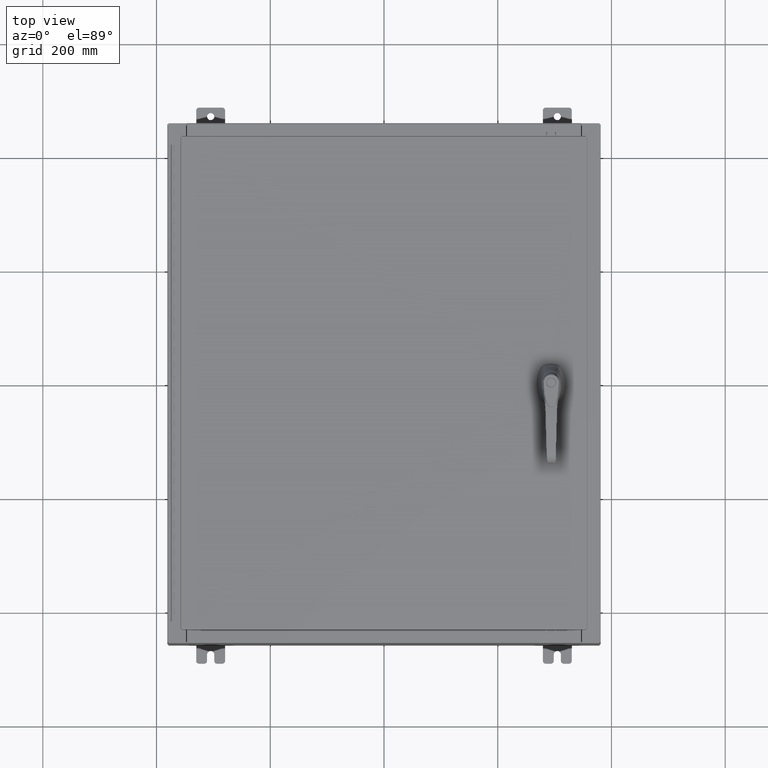
[diagram: clean part render]
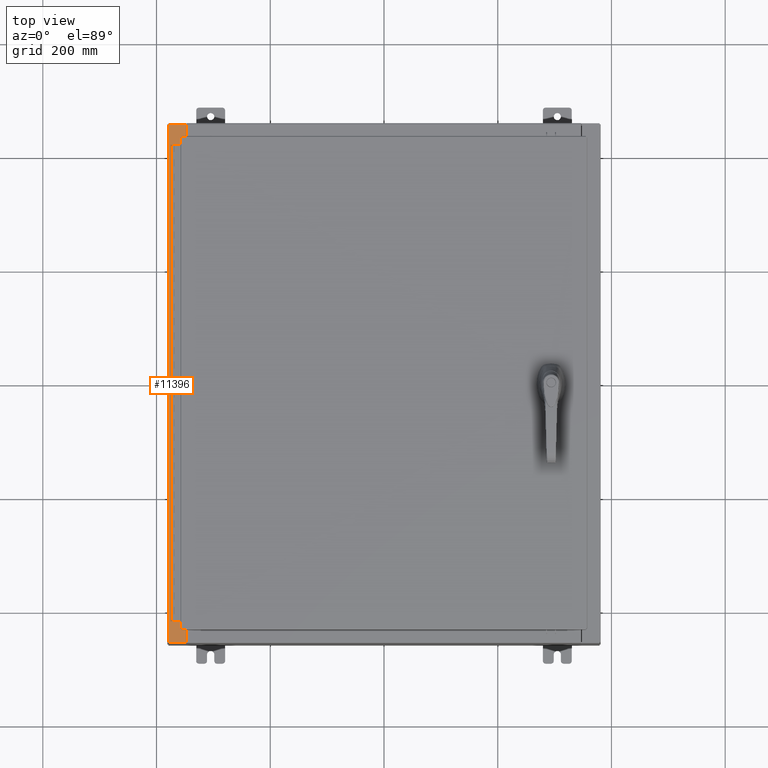
[diagram: same view with one face highlighted and labeled with its STEP entity id]
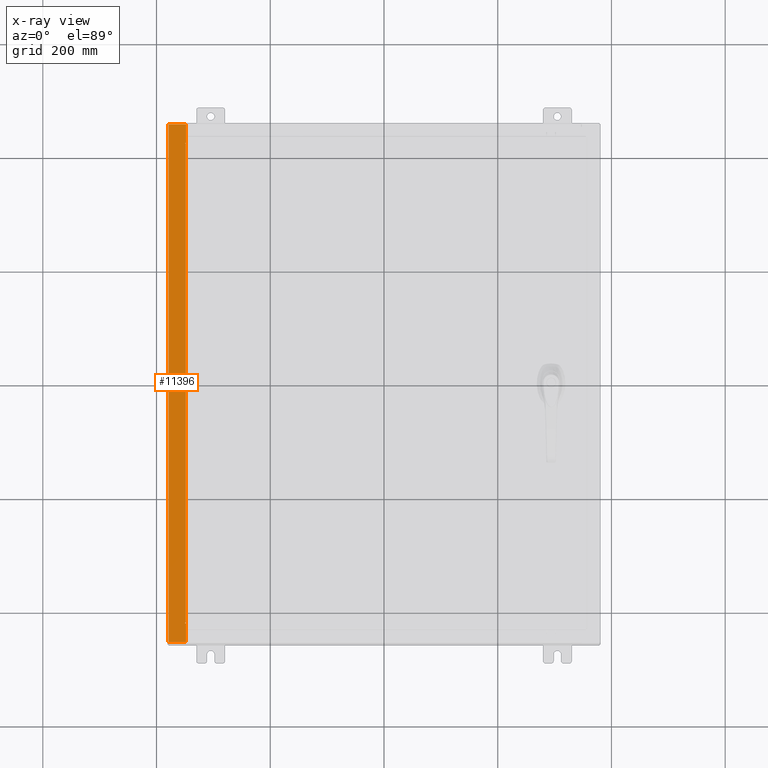
[diagram: x-ray of the same camera — body ghosted, the highlighted face saturated]
A machine part, top view. The second image highlights one B-rep face of the part: STEP entity #11396.
The next image is the same camera in x-ray: the body ghosted, the highlighted face saturated — about 0% of this face is hidden behind the body in this view.
In plain terms, the highlighted planar face has unit normal (0, 0, -1).
Its self-contained STEP definition (entity closure, byte-faithful):
#2072 = CIRCLE ( 'NONE', #61357, 0.01867499999999949400 ) ;
#2090 = EDGE_CURVE ( 'NONE', #105067, #72867, #47841, .T. ) ;
#2468 = LINE ( 'NONE', #93288, #27648 ) ;
#4040 = DIRECTION ( 'NONE',  ( 1.000000000000000000, -4.340572780399910900E-014, 0.0000000000000000000 ) ) ;
#4474 = VECTOR ( 'NONE', #102549, 39.37007874015748100 ) ;
#5859 = CARTESIAN_POINT ( 'NONE',  ( -13.69970000000003900, -5.858168245728885200E-030, 9.925300000000007100 ) ) ;
#6798 = DIRECTION ( 'NONE',  ( -7.132762385546384700E-015, -0.0000000000000000000, 1.000000000000000000 ) ) ;
#11396 = ADVANCED_FACE ( 'NONE', ( #71853 ), #84264, .F. ) ;
#12132 = EDGE_CURVE ( 'NONE', #90244, #117079, #2072, .T. ) ;
#13094 = EDGE_CURVE ( 'NONE', #57377, #97787, #18208, .T. ) ;
#14815 = ORIENTED_EDGE ( 'NONE', *, *, #30844, .F. ) ;
#17175 = VECTOR ( 'NONE', #121809, 39.37007874015748100 ) ;
#17709 = ORIENTED_EDGE ( 'NONE', *, *, #60935, .F. ) ;
#18208 = LINE ( 'NONE', #24433, #90917 ) ;
#20885 = CARTESIAN_POINT ( 'NONE',  ( -13.69970000000003900, -17.92530000000000000, 9.925300000000007100 ) ) ;
#22645 = VECTOR ( 'NONE', #28489, 39.37007874015748100 ) ;
#24433 = CARTESIAN_POINT ( 'NONE',  ( -7.105562016127585500E-014, 17.92530000000000000, 9.925300000000104800 ) ) ;
#25077 = CIRCLE ( 'NONE', #74216, 0.01867499999999949400 ) ;
#25847 = EDGE_CURVE ( 'NONE', #118269, #76996, #31072, .T. ) ;
#26622 = CARTESIAN_POINT ( 'NONE',  ( -13.71270000000004100, 16.59374999999999600, 9.925300000000007100 ) ) ;
#27463 = CARTESIAN_POINT ( 'NONE',  ( -7.105562016127585500E-014, 0.0000000000000000000, 9.925300000000104800 ) ) ;
#27608 = CARTESIAN_POINT ( 'NONE',  ( -14.91230000000003700, 17.92530000000000000, 9.925299999999998200 ) ) ;
#27648 = VECTOR ( 'NONE', #121545, 39.37007874015748100 ) ;
#28489 = DIRECTION ( 'NONE',  ( 1.000000000000000000, -8.758115402030108600E-047, 7.132762385546384700E-015 ) ) ;
#30844 = EDGE_CURVE ( 'NONE', #38688, #31998, #111225, .T. ) ;
#31072 = LINE ( 'NONE', #65041, #33977 ) ;
#31150 = ORIENTED_EDGE ( 'NONE', *, *, #75376, .F. ) ;
#31998 = VERTEX_POINT ( 'NONE', #115659 ) ;
#32029 = ORIENTED_EDGE ( 'NONE', *, *, #74701, .T. ) ;
#33189 = LINE ( 'NONE', #89071, #111941 ) ;
#33977 = VECTOR ( 'NONE', #36354, 39.37007874015748100 ) ;
#34489 = CARTESIAN_POINT ( 'NONE',  ( -13.75005000000003900, 16.59375000000000000, 9.925300000000007100 ) ) ;
#34773 = VERTEX_POINT ( 'NONE', #76702 ) ;
#36354 = DIRECTION ( 'NONE',  ( -1.000000000000000000, -4.340572780399910900E-014, 0.0000000000000000000 ) ) ;
#36983 = DIRECTION ( 'NONE',  ( 7.132762385546384700E-015, 0.0000000000000000000, -1.000000000000000000 ) ) ;
#38485 = CARTESIAN_POINT ( 'NONE',  ( -13.75005000000003900, -16.61242499999998800, 9.925300000000007100 ) ) ;
#38688 = VERTEX_POINT ( 'NONE', #78188 ) ;
#40781 = LINE ( 'NONE', #27608, #91286 ) ;
#42481 = CARTESIAN_POINT ( 'NONE',  ( -13.75005000000003900, -16.59374999999998900, 9.925300000000007100 ) ) ;
#44481 = EDGE_CURVE ( 'NONE', #72867, #50109, #49307, .T. ) ;
#44641 = CARTESIAN_POINT ( 'NONE',  ( -14.91230000000003700, 17.92530000000000000, 9.925299999999998200 ) ) ;
#47841 = LINE ( 'NONE', #113569, #22645 ) ;
#48000 = DIRECTION ( 'NONE',  ( 1.000000000000000000, 0.0000000000000000000, 0.0000000000000000000 ) ) ;
#48269 = ORIENTED_EDGE ( 'NONE', *, *, #111544, .F. ) ;
#49307 = LINE ( 'NONE', #5859, #75823 ) ;
#49627 = CARTESIAN_POINT ( 'NONE',  ( -14.91230000000003700, -17.92530000000000000, 9.925299999999998200 ) ) ;
#50109 = VERTEX_POINT ( 'NONE', #105361 ) ;
#50415 = CARTESIAN_POINT ( 'NONE',  ( -13.69970000000003900, 17.92530000000000000, 9.925300000000007100 ) ) ;
#53105 = ORIENTED_EDGE ( 'NONE', *, *, #25847, .F. ) ;
#55381 = CARTESIAN_POINT ( 'NONE',  ( -13.71270000000004100, -16.59374999999998900, 9.925300000000007100 ) ) ;
#57377 = VERTEX_POINT ( 'NONE', #50415 ) ;
#60510 = ORIENTED_EDGE ( 'NONE', *, *, #12132, .F. ) ;
#60935 = EDGE_CURVE ( 'NONE', #76996, #38688, #25077, .T. ) ;
#61357 = AXIS2_PLACEMENT_3D ( 'NONE', #38485, #104894, #48000 ) ;
#61942 = EDGE_LOOP ( 'NONE', ( #53105, #32029, #89744, #97042, #70216, #95102, #75708, #60510, #31150, #48269, #14815, #17709 ) ) ;
#62206 = DIRECTION ( 'NONE',  ( -1.000000000000000000, -1.087045829762336900E-031, -7.132762385546384700E-015 ) ) ;
#63641 = CARTESIAN_POINT ( 'NONE',  ( -13.75005000000003900, 16.61242500000000200, 9.925300000000007100 ) ) ;
#63676 = EDGE_CURVE ( 'NONE', #105067, #97787, #40781, .T. ) ;
#65041 = CARTESIAN_POINT ( 'NONE',  ( -13.69970000000003900, 16.63110000000000400, 9.925300000000007100 ) ) ;
#70216 = ORIENTED_EDGE ( 'NONE', *, *, #2090, .T. ) ;
#71853 = FACE_OUTER_BOUND ( 'NONE', #61942, .T. ) ;
#72295 = CARTESIAN_POINT ( 'NONE',  ( -13.69970000000003900, 16.63110000000000400, 9.925300000000007100 ) ) ;
#72867 = VERTEX_POINT ( 'NONE', #20885 ) ;
#73153 = DIRECTION ( 'NONE',  ( 1.000000000000000000, 0.0000000000000000000, 0.0000000000000000000 ) ) ;
#74216 = AXIS2_PLACEMENT_3D ( 'NONE', #63641, #6798, #73153 ) ;
#74701 = EDGE_CURVE ( 'NONE', #118269, #57377, #2468, .T. ) ;
#75376 = EDGE_CURVE ( 'NONE', #34773, #90244, #115193, .T. ) ;
#75708 = ORIENTED_EDGE ( 'NONE', *, *, #88397, .F. ) ;
#75823 = VECTOR ( 'NONE', #81710, 39.37007874015748100 ) ;
#76702 = CARTESIAN_POINT ( 'NONE',  ( -13.71270000000004100, -16.59374999999998900, 9.925300000000007100 ) ) ;
#76996 = VERTEX_POINT ( 'NONE', #92923 ) ;
#78188 = CARTESIAN_POINT ( 'NONE',  ( -13.75005000000003900, 16.59375000000000000, 9.925300000000007100 ) ) ;
#81710 = DIRECTION ( 'NONE',  ( -4.276128853718621600E-031, 1.000000000000000000, -3.050061104355376000E-045 ) ) ;
#82940 = VECTOR ( 'NONE', #110876, 39.37007874015748100 ) ;
#84264 = PLANE ( 'NONE',  #104258 ) ;
#88397 = EDGE_CURVE ( 'NONE', #117079, #50109, #33189, .T. ) ;
#89071 = CARTESIAN_POINT ( 'NONE',  ( -13.75005000000003900, -16.63109999999998600, 9.925300000000007100 ) ) ;
#89744 = ORIENTED_EDGE ( 'NONE', *, *, #13094, .T. ) ;
#90244 = VERTEX_POINT ( 'NONE', #42481 ) ;
#90917 = VECTOR ( 'NONE', #62206, 39.37007874015748100 ) ;
#91286 = VECTOR ( 'NONE', #113106, 39.37007874015748100 ) ;
#92923 = CARTESIAN_POINT ( 'NONE',  ( -13.75005000000003900, 16.63110000000000000, 9.925300000000007100 ) ) ;
#93288 = CARTESIAN_POINT ( 'NONE',  ( -13.69970000000003900, -5.858168245728885200E-030, 9.925300000000007100 ) ) ;
#93749 = CARTESIAN_POINT ( 'NONE',  ( -13.75005000000003900, -16.63109999999998600, 9.925300000000007100 ) ) ;
#95102 = ORIENTED_EDGE ( 'NONE', *, *, #44481, .T. ) ;
#97042 = ORIENTED_EDGE ( 'NONE', *, *, #63676, .F. ) ;
#97787 = VERTEX_POINT ( 'NONE', #44641 ) ;
#102549 = DIRECTION ( 'NONE',  ( -0.0000000000000000000, -1.000000000000000000, -0.0000000000000000000 ) ) ;
#103399 = DIRECTION ( 'NONE',  ( -1.000000000000000000, 0.0000000000000000000, -7.132762385546384700E-015 ) ) ;
#104258 = AXIS2_PLACEMENT_3D ( 'NONE', #27463, #36983, #103399 ) ;
#104894 = DIRECTION ( 'NONE',  ( -7.132762385546384700E-015, -0.0000000000000000000, 1.000000000000000000 ) ) ;
#105067 = VERTEX_POINT ( 'NONE', #49627 ) ;
#105361 = CARTESIAN_POINT ( 'NONE',  ( -13.69970000000003900, -16.63109999999998600, 9.925300000000007100 ) ) ;
#105453 = LINE ( 'NONE', #26622, #4474 ) ;
#110876 = DIRECTION ( 'NONE',  ( 1.000000000000000000, 0.0000000000000000000, 0.0000000000000000000 ) ) ;
#111225 = LINE ( 'NONE', #34489, #82940 ) ;
#111544 = EDGE_CURVE ( 'NONE', #31998, #34773, #105453, .T. ) ;
#111941 = VECTOR ( 'NONE', #4040, 39.37007874015748100 ) ;
#113106 = DIRECTION ( 'NONE',  ( -0.0000000000000000000, 1.000000000000000000, -0.0000000000000000000 ) ) ;
#113569 = CARTESIAN_POINT ( 'NONE',  ( -7.105562016127585500E-014, -17.92530000000000000, 9.925300000000104800 ) ) ;
#115193 = LINE ( 'NONE', #55381, #17175 ) ;
#115659 = CARTESIAN_POINT ( 'NONE',  ( -13.71270000000004100, 16.59375000000000000, 9.925300000000007100 ) ) ;
#117079 = VERTEX_POINT ( 'NONE', #93749 ) ;
#118269 = VERTEX_POINT ( 'NONE', #72295 ) ;
#121545 = DIRECTION ( 'NONE',  ( -4.276128853718621600E-031, 1.000000000000000000, -3.050061104355376000E-045 ) ) ;
#121809 = DIRECTION ( 'NONE',  ( -1.000000000000000000, 0.0000000000000000000, 0.0000000000000000000 ) ) ;